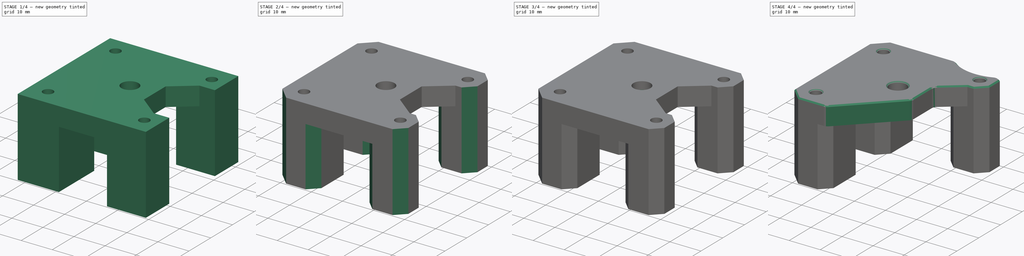
[diagram: build sequence overview — one tinted view per stage of 4, left to right]
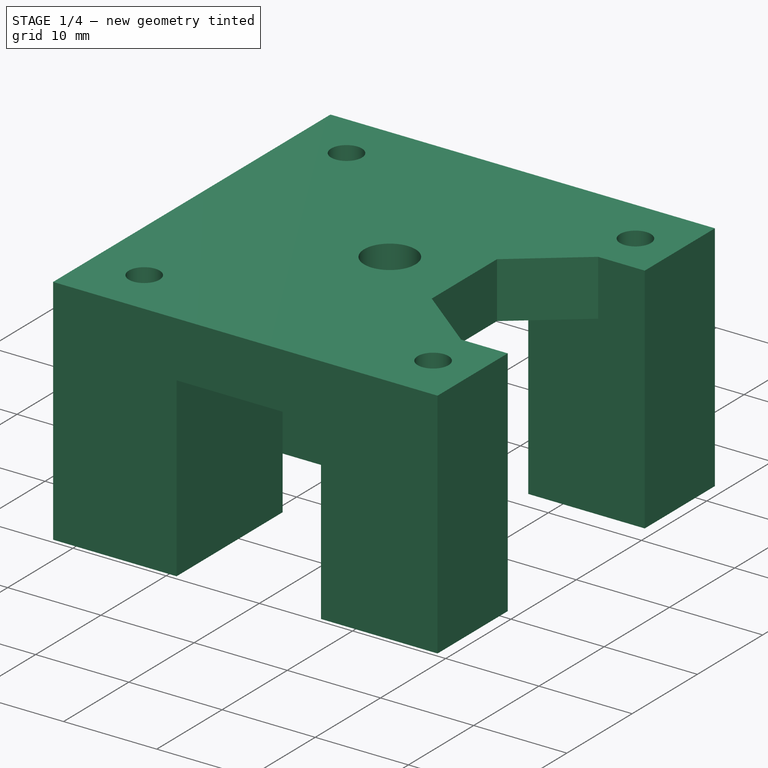
[diagram: stage 1 of 4 — iso view after this stage's code; geometry added in this stage tinted green]
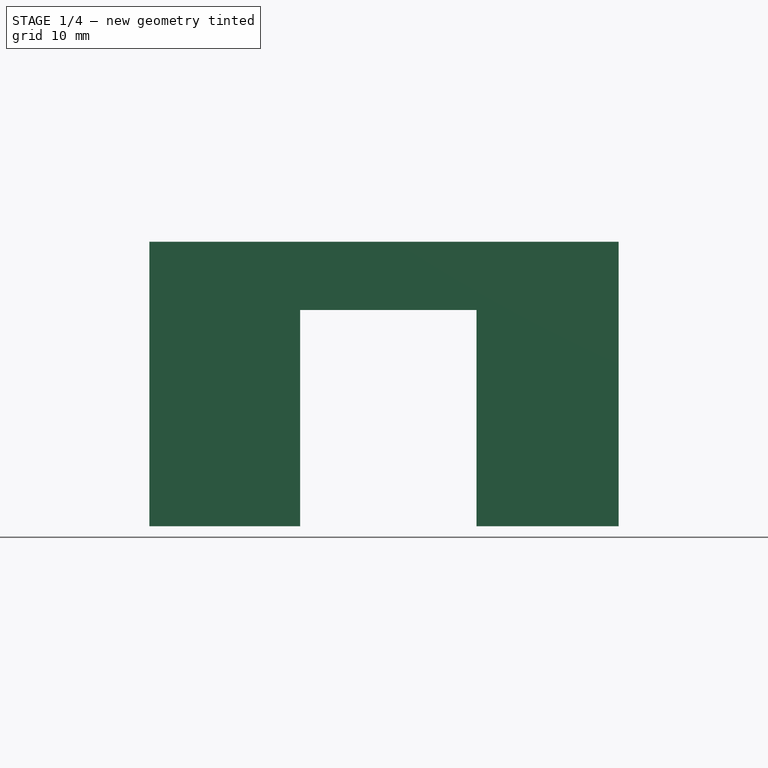
[diagram: stage 1 of 4 — front view after this stage's code; geometry added in this stage tinted green]
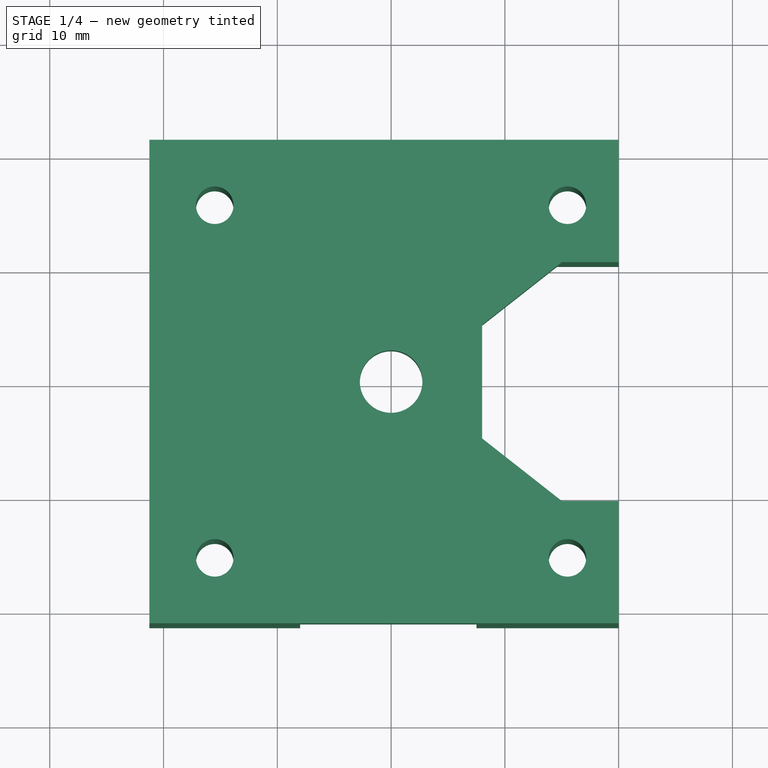
[diagram: stage 1 of 4 — top view after this stage's code; geometry added in this stage tinted green]
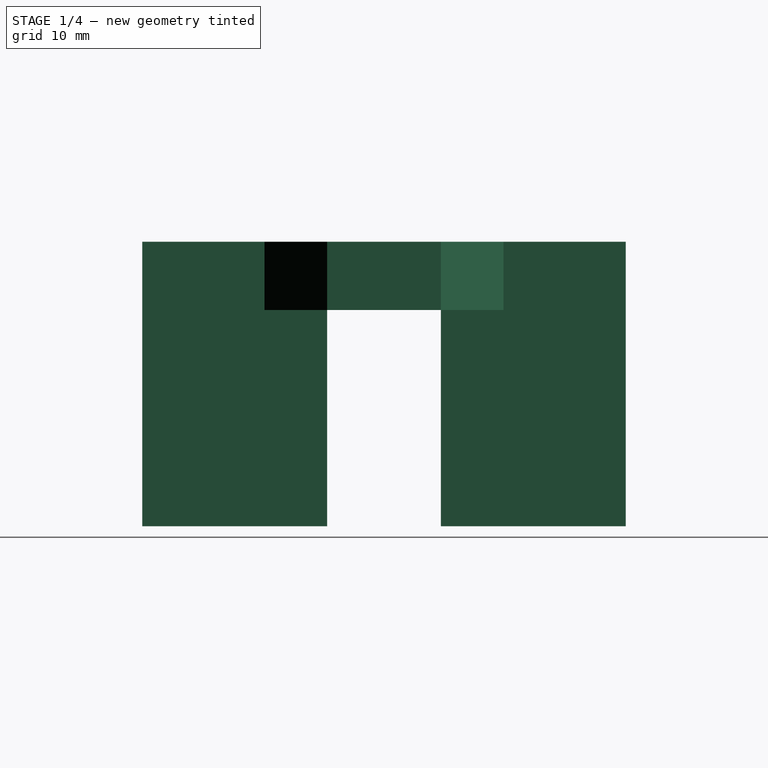
[diagram: stage 1 of 4 — right view after this stage's code; geometry added in this stage tinted green]
FCSTD DOCUMENT  (FreeCAD 0.19R24291 (Git))
Label: x-motor-support
License: All rights reserved
LicenseURL: http://en.wikipedia.org/wiki/All_rights_reserved
objects: Sketcher::SketchObject×8, PartDesign::Pocket×8, PartDesign::Chamfer×4, PartDesign::Pad×1, PartDesign::Fillet×1, PartDesign::Body×1
note: 37 computed .brp shape members not serialized (recipe doc carries the construction recipe); baked Part::Feature solids carry a one-line shape summary decoded from their .brp

FEATURE [Sketcher::SketchObject] Sketch
  FullyConstrained = true
  MapMode = 5
  Support = -> [XY_Plane]
  sketch-geometry (9):
    g0: LineSegment StartX=-21.25 StartY=21.25 StartZ=0 EndX=20 EndY=21.25 EndZ=0
    g1: LineSegment StartX=20 StartY=21.25 StartZ=0 EndX=20 EndY=-21.25 EndZ=0
    g2: LineSegment StartX=20 StartY=-21.25 StartZ=0 EndX=-21.25 EndY=-21.25 EndZ=0
    g3: LineSegment StartX=-21.25 StartY=-21.25 StartZ=0 EndX=-21.25 EndY=21.25 EndZ=0
    g4: Circle CenterX=-15.5 CenterY=15.5 CenterZ=0 NormalX=0 NormalY=0 NormalZ=1 AngleXU=0 Radius=1.65
    g5: Circle CenterX=-15.5 CenterY=-15.5 CenterZ=0 NormalX=0 NormalY=0 NormalZ=1 AngleXU=0 Radius=1.65
    g6: Circle CenterX=15.5 CenterY=-15.5 CenterZ=0 NormalX=0 NormalY=0 NormalZ=1 AngleXU=0 Radius=1.65
    g7: Circle CenterX=15.5 CenterY=15.5 CenterZ=0 NormalX=0 NormalY=0 NormalZ=1 AngleXU=0 Radius=1.65
    g8: Circle CenterX=0 CenterY=0 CenterZ=0 NormalX=0 NormalY=0 NormalZ=1 AngleXU=0 Radius=2.75
  constraints (26):
    c: Coincident(g0,g1)
    c: Coincident(g1,g2)
    c: Coincident(g2,g3)
    c: Coincident(g3,g0)
    c: Horizontal(g0)
    c: Horizontal(g2)
    c: Vertical(g1)
    c: Vertical(g3)
    c: DistanceY(g3,g3) = 42.5
    c: DistanceY(g-1,g0) = 21.25
    c: DistanceX(g0,g-1) = 21.25
    c: DistanceX(g-1,g0) = 20
    c: Horizontal(g7,g4)
    c: Horizontal(g5,g6)
    c: Vertical(g5,g4)
    c: Vertical(g6,g7)
    c: Equal(g5,g4)
    c: Equal(g4,g7)
    c: Equal(g7,g6)
    c: DistanceX(g4,g7) = 31
    c: DistanceY(g-1,g7) = 15.5
    c: DistanceY(g6,g7) = 31
    c: Radius(g4) = 1.65
    c: Coincident(g8,g-1)
    c: Radius(g8) = 2.75
    c: DistanceX(g4,g8) = 15.5
FEATURE [PartDesign::Pad] Pad
  Direction = (1,1,1)
  Length = 25
  Length2 = 100
  Profile = -> Sketch
  Type = 0
FEATURE [Sketcher::SketchObject] Sketch001
  ExternalGeometry = -> [Pad]
  FullyConstrained = true
  MapMode = 5
  Placement = pos=(0,0,0) rot=(1,0,0;3.14159rad)
  Support = -> [Pad]
  sketch-geometry (13):
    g0: LineSegment StartX=-21.25 StartY=5 StartZ=0 EndX=-21.25 EndY=-5 EndZ=0
    g1: LineSegment StartX=-21.25 StartY=-5 StartZ=0 EndX=-8 EndY=-5 EndZ=0
    g2: LineSegment StartX=-8 StartY=-5 StartZ=0 EndX=-8 EndY=-21.25 EndZ=0
    g3: LineSegment StartX=-8 StartY=-21.25 StartZ=0 EndX=7.5 EndY=-21.25 EndZ=0
    g4: LineSegment StartX=7.5 StartY=-21.25 StartZ=0 EndX=7.5 EndY=-10.5 EndZ=0
    g5: LineSegment StartX=7.5 StartY=-10.5 StartZ=0 EndX=20 EndY=-10.5 EndZ=0
    g6: LineSegment StartX=20 StartY=-10.5 StartZ=0 EndX=20 EndY=10.5 EndZ=0
    g7: LineSegment StartX=20 StartY=10.5 StartZ=0 EndX=7.5 EndY=10.5 EndZ=0
    g8: LineSegment StartX=7.5 StartY=10.5 StartZ=0 EndX=7.5 EndY=21.25 EndZ=0
    g9: LineSegment StartX=7.5 StartY=21.25 StartZ=0 EndX=-8 EndY=21.25 EndZ=0
    g10: LineSegment StartX=-8 StartY=21.25 StartZ=0 EndX=-8 EndY=5 EndZ=0
    g11: LineSegment StartX=-8 StartY=5 StartZ=0 EndX=-21.25 EndY=5 EndZ=0
    g12: Circle CenterX=0 CenterY=0 CenterZ=0 NormalX=0 NormalY=0 NormalZ=1 AngleXU=0 Radius=7.5
  constraints (38):
    c: PointOnObject(g0,g-7)
    c: PointOnObject(g0,g-7)
    c: Coincident(g0,g1)
    c: Horizontal(g1)
    c: Coincident(g1,g2)
    c: PointOnObject(g2,g-8)
    c: Vertical(g2)
    c: Coincident(g2,g3)
    c: PointOnObject(g3,g-8)
    c: Coincident(g3,g4)
    c: Coincident(g4,g5)
    c: PointOnObject(g5,g-10)
    c: Horizontal(g5)
    c: Coincident(g5,g6)
    c: PointOnObject(g6,g-10)
    c: Coincident(g6,g7)
    c: Horizontal(g7)
    c: Coincident(g7,g8)
    c: PointOnObject(g8,g-9)
    c: Coincident(g8,g9)
    c: PointOnObject(g9,g-9)
    c: Coincident(g9,g10)
    c: Vertical(g10)
    c: Coincident(g10,g11)
    c: Coincident(g11,g0)
    c: Horizontal(g11)
    c: Vertical(g8)
    c: Vertical(g4)
    c: Vertical(g1,g10)
    c: Vertical(g4,g7)
    c: DistanceY(g0,g-3) = 10.5
    c: DistanceY(g-6,g0) = 10.5
    c: DistanceX(g-6,g1) = 7.5
    c: DistanceX(g-1,g7) = 7.5
    c: DistanceY(g-5,g4) = 5
    c: DistanceY(g7,g-4) = 5
    c: Coincident(g12,g-1)
    c: Radius(g12) = 7.5
FEATURE [PartDesign::Pocket] Pocket
  BaseFeature = -> Pad
  Length = 19
  Length2 = 100
  Profile = -> Sketch001
  Type = 0
FEATURE [PartDesign::Pocket] Pocket001
  BaseFeature = -> Pocket
  Length = 19
  Length2 = 100
  Profile = -> Sketch001
  Type = 0
FEATURE [Sketcher::SketchObject] Sketch002
  ExternalGeometry = -> [Pocket001]
  FullyConstrained = true
  MapMode = 5
  Placement = pos=(0,0,19) rot=(1,0,0;3.14159rad)
  Support = -> [Pocket001]
  sketch-geometry (6):
    g0: LineSegment StartX=20 StartY=10.5 StartZ=0 EndX=20 EndY=-10.5 EndZ=0
    g1: LineSegment StartX=20 StartY=-10.5 StartZ=0 EndX=15 EndY=-10.5 EndZ=0
    g2: LineSegment StartX=15 StartY=-10.5 StartZ=0 EndX=8 EndY=-5 EndZ=0
    g3: LineSegment StartX=8 StartY=-5 StartZ=0 EndX=8 EndY=5 EndZ=0
    g4: LineSegment StartX=8 StartY=5 StartZ=0 EndX=15 EndY=10.5 EndZ=0
    g5: LineSegment StartX=15 StartY=10.5 StartZ=0 EndX=20 EndY=10.5 EndZ=0
  constraints (16):
    c: Coincident(g-4,g0)
    c: Coincident(g0,g-5)
    c: Coincident(g0,g1)
    c: PointOnObject(g1,g-5)
    c: Coincident(g1,g2)
    c: Coincident(g2,g3)
    c: Vertical(g3)
    c: Coincident(g3,g4)
    c: PointOnObject(g4,g-4)
    c: Coincident(g4,g5)
    c: Coincident(g5,g0)
    c: DistanceX(g5,g5) = 5
    c: Vertical(g1,g4)
    c: DistanceX(g3,g4) = 7
    c: DistanceY(g-1,g3) = 5
    c: DistanceY(g2,g-1) = 5
FEATURE [PartDesign::Pocket] Pocket002
  BaseFeature = -> Pocket001
  Length = 5
  Length2 = 100
  Profile = -> Sketch002
  Type = 1
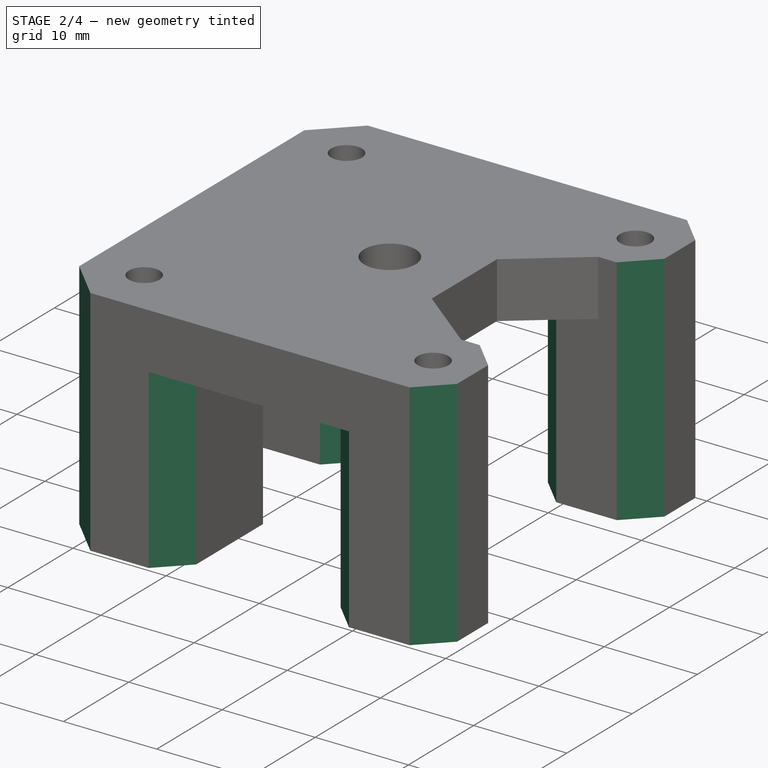
[diagram: stage 2 of 4 — iso view after this stage's code; geometry added in this stage tinted green]
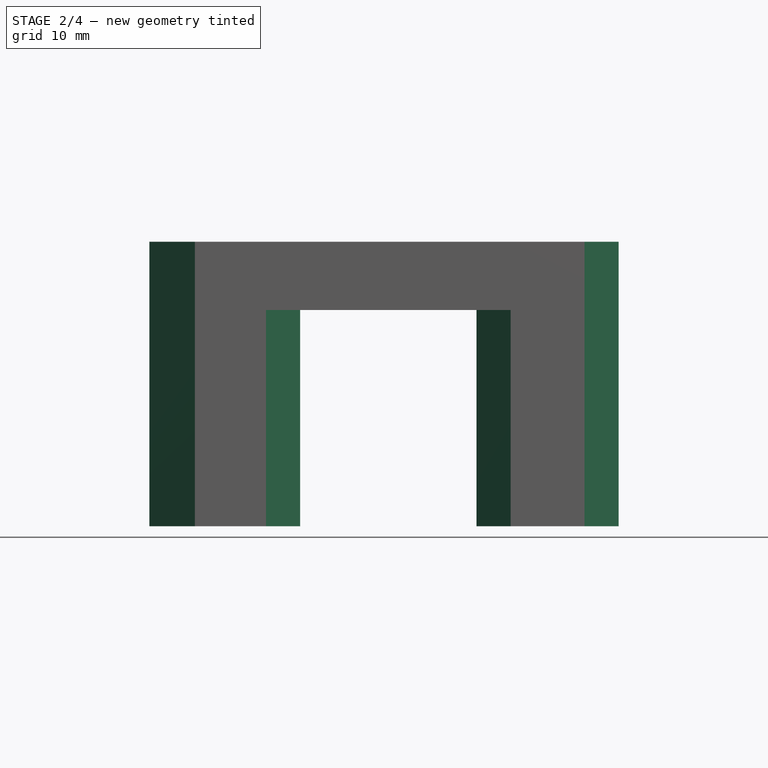
[diagram: stage 2 of 4 — front view after this stage's code; geometry added in this stage tinted green]
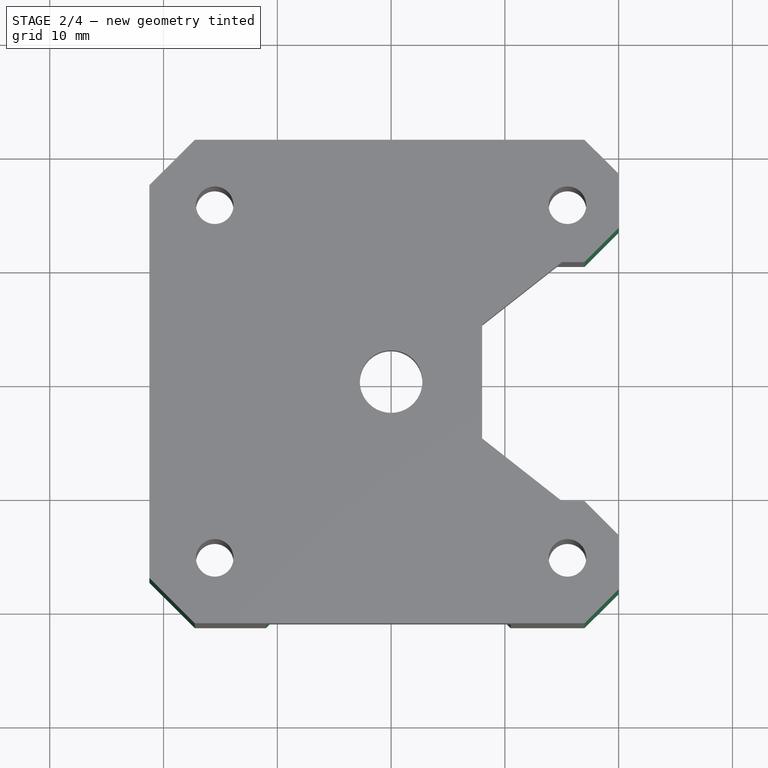
[diagram: stage 2 of 4 — top view after this stage's code; geometry added in this stage tinted green]
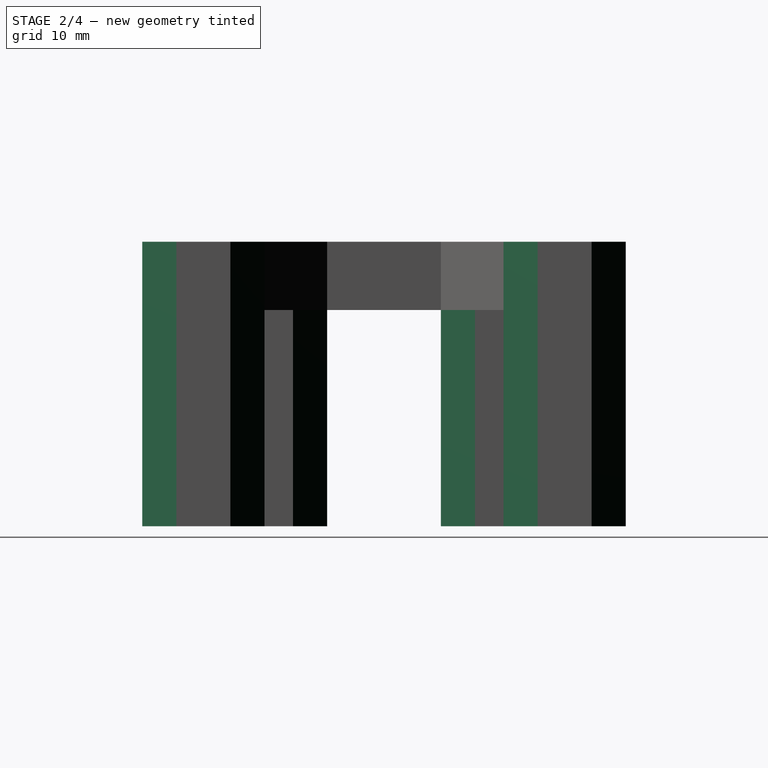
[diagram: stage 2 of 4 — right view after this stage's code; geometry added in this stage tinted green]
FEATURE [PartDesign::Chamfer] Chamfer
  Angle = 45
  Base = -> Pocket002 [Edge52,Edge8]
  BaseFeature = -> Pocket002
  ChamferType = 0
  FlipDirection = false
  Size = 4
  Size2 = 1
  SupportTransform = false
FEATURE [PartDesign::Chamfer] Chamfer001
  Angle = 45
  Base = -> Chamfer [Edge6,Edge48,Edge65,Edge62]
  BaseFeature = -> Chamfer
  ChamferType = 0
  FlipDirection = false
  Size = 3
  Size2 = 1
  SupportTransform = false
FEATURE [PartDesign::Chamfer] Chamfer002
  Angle = 45
  Base = -> Chamfer001 [Edge44,Edge94,Edge97,Edge62,Edge42,Edge6,Edge63,Edge7]
  BaseFeature = -> Chamfer001
  ChamferType = 0
  FlipDirection = false
  Size = 3
  Size2 = 1
  SupportTransform = false
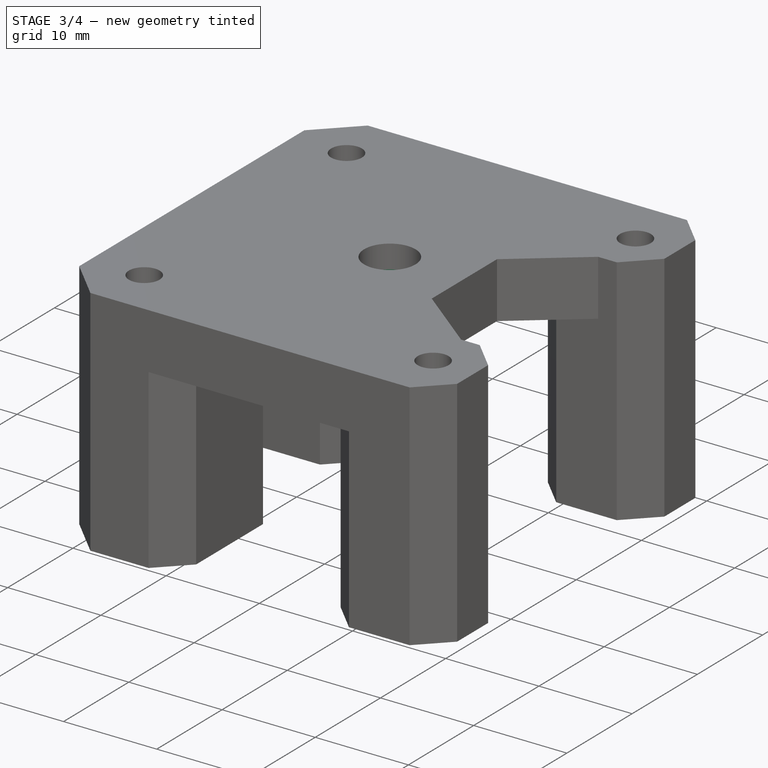
[diagram: stage 3 of 4 — iso view after this stage's code; geometry added in this stage tinted green]
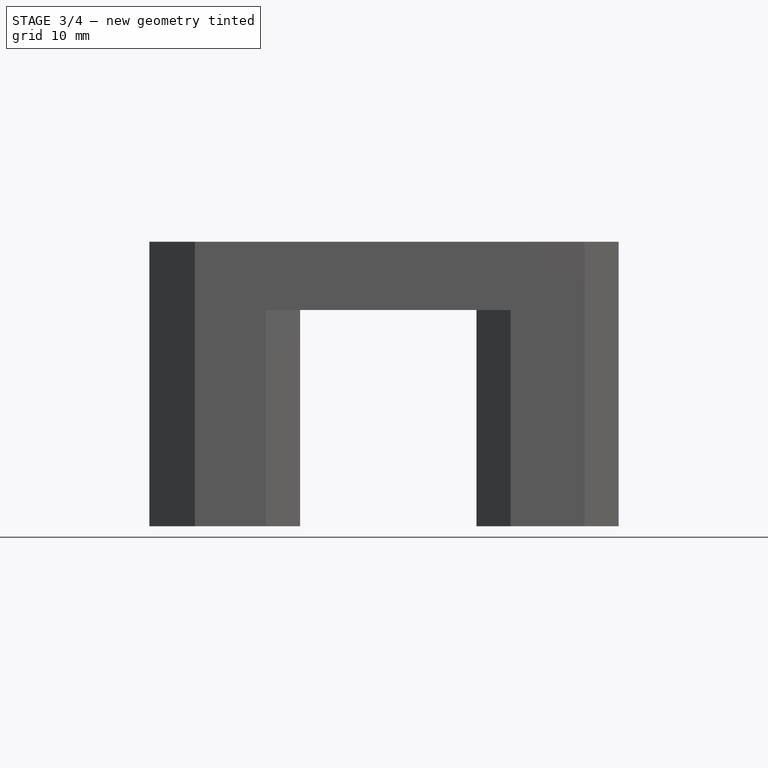
[diagram: stage 3 of 4 — front view after this stage's code; geometry added in this stage tinted green]
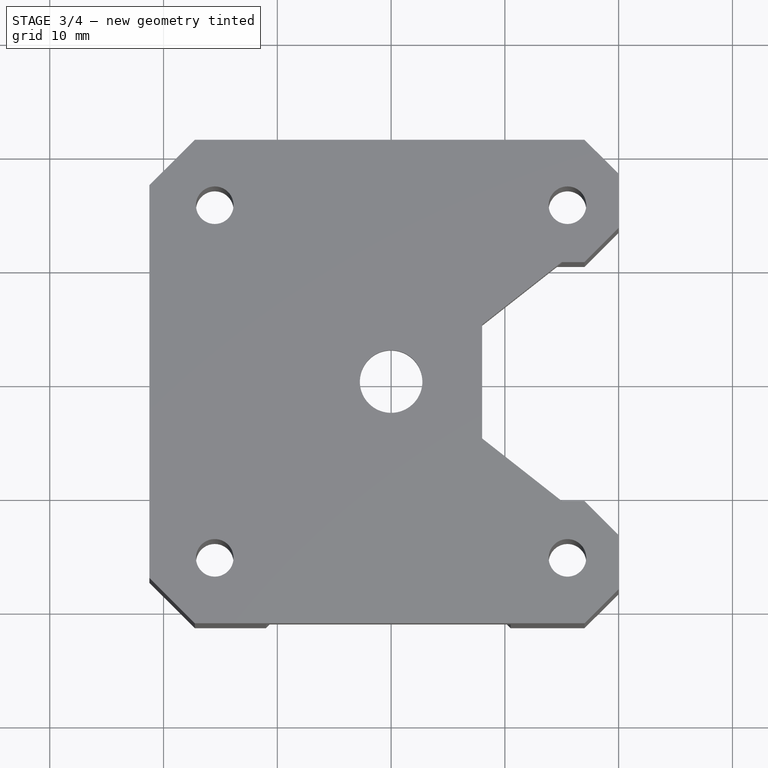
[diagram: stage 3 of 4 — top view after this stage's code; geometry added in this stage tinted green]
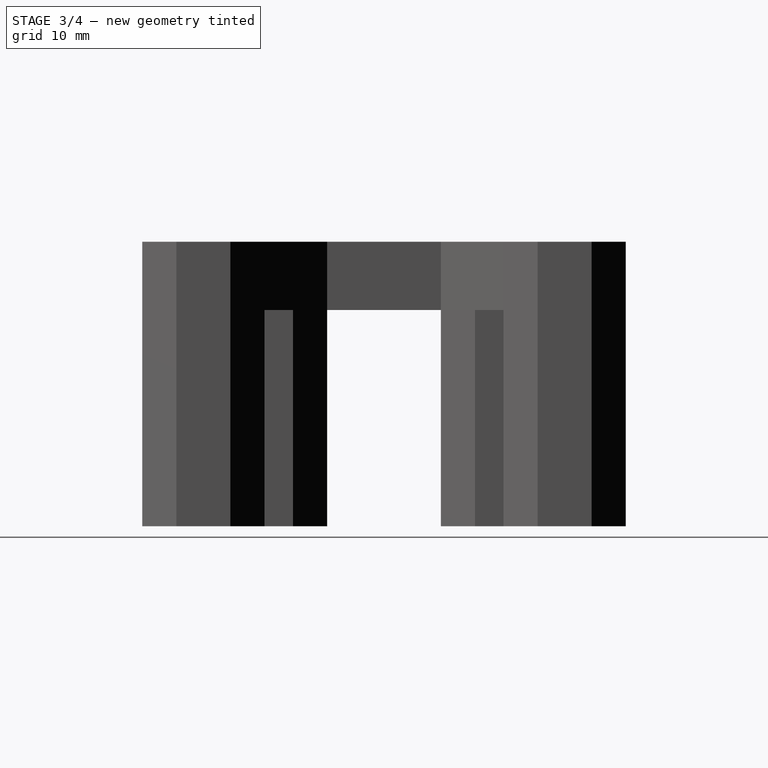
[diagram: stage 3 of 4 — right view after this stage's code; geometry added in this stage tinted green]
FEATURE [Sketcher::SketchObject] Sketch003
  FullyConstrained = true
  MapMode = 5
  Placement = pos=(0,0,19) rot=(1,0,0;3.14159rad)
  Support = -> [Chamfer002]
  sketch-geometry (1):
    g0: Circle CenterX=0 CenterY=0 CenterZ=0 NormalX=0 NormalY=0 NormalZ=1 AngleXU=0 Radius=5.55
  constraints (2):
    c: Coincident(g0,g-1)
    c: Radius(g0) = 5.55
FEATURE [PartDesign::Pocket] Pocket003
  BaseFeature = -> Chamfer002
  Length = 3.5
  Length2 = 100
  Profile = -> Sketch003
  Type = 0
FEATURE [Sketcher::SketchObject] Sketch004
  FullyConstrained = true
  MapMode = 5
  Placement = pos=(-21.25,0,0) rot=(0.57735,-0.57735,-0.57735;2.0944rad)
  Support = -> [Pocket003]
  sketch-geometry (4):
    g0: Circle CenterX=-10 CenterY=20 CenterZ=0 NormalX=0 NormalY=0 NormalZ=1 AngleXU=0 Radius=1.55
    g1: Circle CenterX=10 CenterY=20 CenterZ=0 NormalX=0 NormalY=0 NormalZ=1 AngleXU=0 Radius=1.55
    g2: Circle CenterX=-10 CenterY=5 CenterZ=0 NormalX=0 NormalY=0 NormalZ=1 AngleXU=0 Radius=1.55
    g3: Circle CenterX=10 CenterY=5 CenterZ=0 NormalX=0 NormalY=0 NormalZ=1 AngleXU=0 Radius=1.55
  constraints (12):
    c: Horizontal(g0,g1)
    c: Horizontal(g2,g3)
    c: Vertical(g2,g0)
    c: Vertical(g3,g1)
    c: Equal(g0,g2)
    c: Equal(g2,g3)
    c: Equal(g3,g1)
    c: Radius(g0) = 1.55
    c: DistanceX(g2,g-1) = 10
    c: DistanceX(g-1,g3) = 10
    c: DistanceY(g-1,g2) = 5
    c: DistanceY(g2,g0) = 15
FEATURE [PartDesign::Pocket] Pocket004
  BaseFeature = -> Pocket003
  Length = 10
  Length2 = 100
  Profile = -> Sketch004
  Type = 0
FEATURE [Sketcher::SketchObject] Sketch005
  ExternalGeometry = -> [Pocket004]
  FullyConstrained = true
  MapMode = 5
  Placement = pos=(-21.25,0,0) rot=(0.57735,-0.57735,-0.57735;2.0944rad)
  Support = -> [Pocket004]
  sketch-geometry (4):
    g0: Circle CenterX=-10 CenterY=20 CenterZ=0 NormalX=0 NormalY=0 NormalZ=1 AngleXU=0 Radius=1.9
    g1: Circle CenterX=-10 CenterY=5 CenterZ=0 NormalX=0 NormalY=0 NormalZ=1 AngleXU=0 Radius=1.9
    g2: Circle CenterX=10 CenterY=5 CenterZ=0 NormalX=0 NormalY=0 NormalZ=1 AngleXU=0 Radius=1.9
    g3: Circle CenterX=10 CenterY=20 CenterZ=0 NormalX=0 NormalY=0 NormalZ=1 AngleXU=0 Radius=1.9
  constraints (8):
    c: Coincident(g0,g-3)
    c: Coincident(g1,g-6)
    c: Coincident(g2,g-5)
    c: Coincident(g3,g-4)
    c: Equal(g0,g1)
    c: Equal(g1,g2)
    c: Equal(g2,g3)
    c: Radius(g0) = 1.9
FEATURE [PartDesign::Pocket] Pocket005
  BaseFeature = -> Pocket004
  Length = 6
  Length2 = 100
  Profile = -> Sketch005
  Type = 0
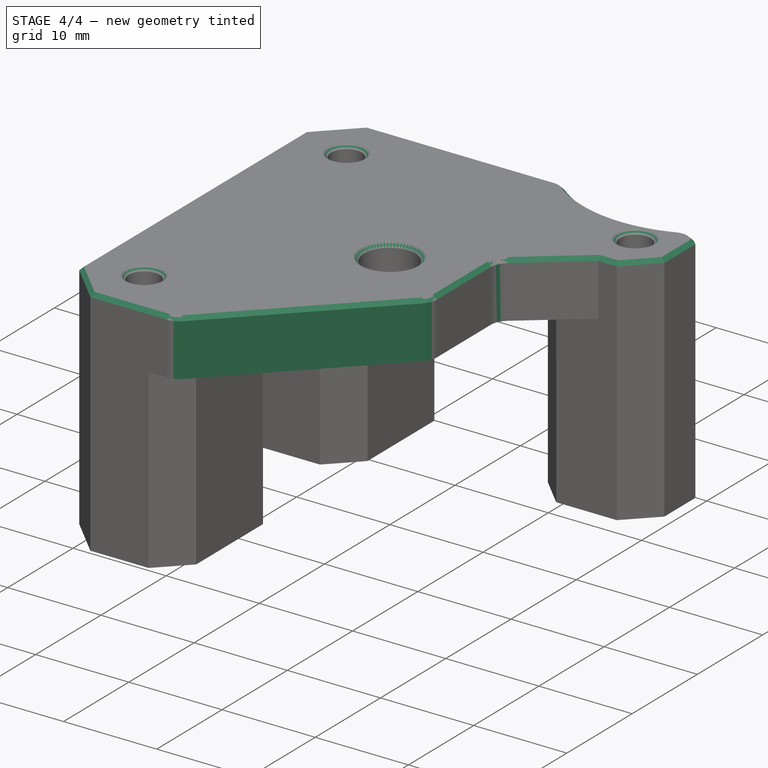
[diagram: stage 4 of 4 — iso view after this stage's code; geometry added in this stage tinted green]
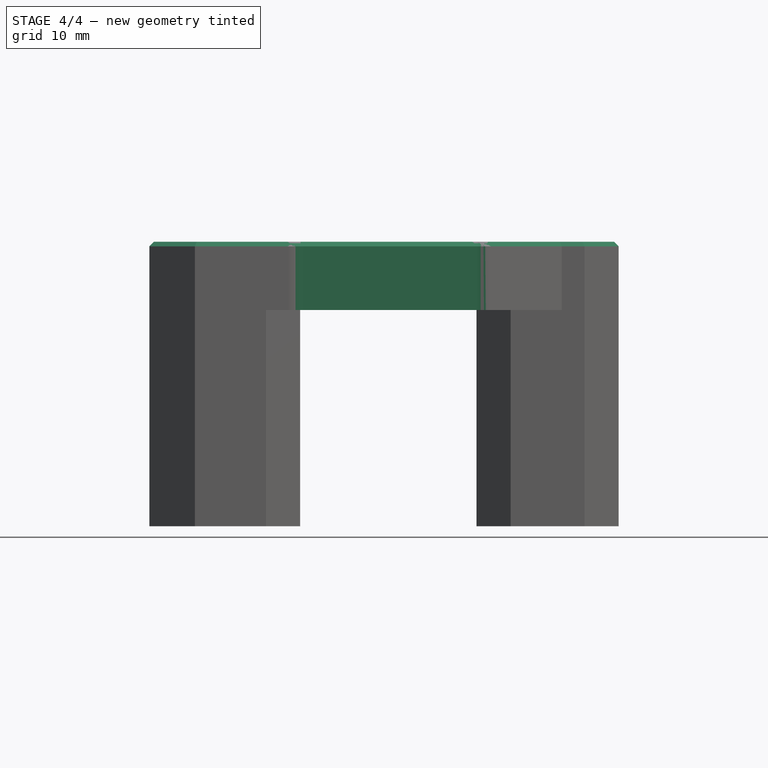
[diagram: stage 4 of 4 — front view after this stage's code; geometry added in this stage tinted green]
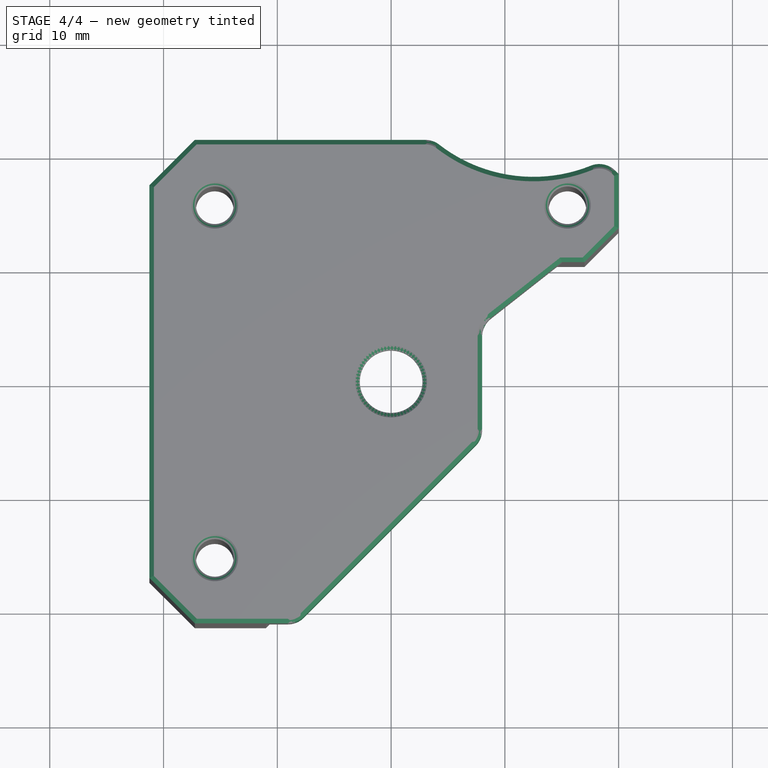
[diagram: stage 4 of 4 — top view after this stage's code; geometry added in this stage tinted green]
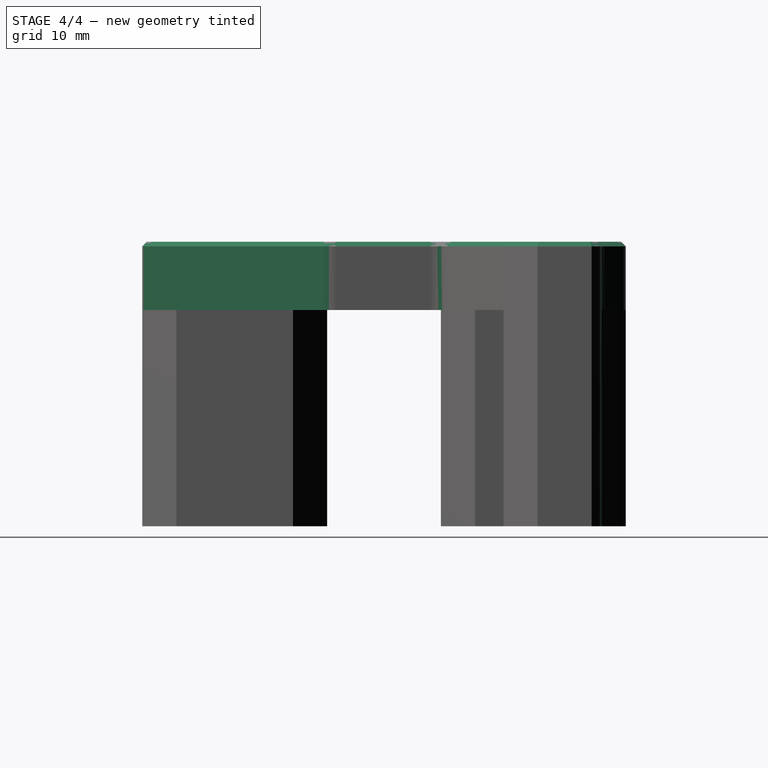
[diagram: stage 4 of 4 — right view after this stage's code; geometry added in this stage tinted green]
FEATURE [Sketcher::SketchObject] Sketch006
  ExternalGeometry = -> [Pocket005]
  FullyConstrained = true
  MapMode = 5
  Placement = pos=(0,0,25) rot=(0,0,1;0rad)
  Support = -> [Pocket005]
  sketch-geometry (2):
    g0: Circle CenterX=12.5 CenterY=31.5 CenterZ=0 NormalX=0 NormalY=0 NormalZ=1 AngleXU=0 Radius=13.5
    g1: Circle CenterX=12.5 CenterY=-31.5 CenterZ=0 NormalX=0 NormalY=0 NormalZ=1 AngleXU=0 Radius=13.5
  constraints (6):
    c: Vertical(g1,g0)
    c: DistanceX(g0,g-3) = 3
    c: DistanceY(g-3,g0) = 16
    c: DistanceY(g1,g-4) = 16
    c: Equal(g0,g1)
    c: Radius(g0) = 13.5
FEATURE [PartDesign::Pocket] Pocket006
  BaseFeature = -> Pocket005
  Length = 5
  Length2 = 100
  Profile = -> Sketch006
  Type = 1
FEATURE [Sketcher::SketchObject] Sketch007
  ExternalGeometry = -> [Pocket006]
  FullyConstrained = true
  MapMode = 5
  Placement = pos=(0,0,25) rot=(0,0,1;0rad)
  Support = -> [Pocket006]
  sketch-geometry (4):
    g0: LineSegment StartX=8 StartY=-5 StartZ=0 EndX=-8.25 EndY=-21.25 EndZ=0
    g1: LineSegment StartX=-8.25 StartY=-21.25 StartZ=0 EndX=20 EndY=-21.25 EndZ=0
    g2: LineSegment StartX=20 StartY=-21.25 StartZ=0 EndX=20 EndY=-5 EndZ=0
    g3: LineSegment StartX=20 StartY=-5 StartZ=0 EndX=8 EndY=-5 EndZ=0
  constraints (11):
    c: Coincident(g-3,g0)
    c: PointOnObject(g0,g-4)
    c: Coincident(g0,g1)
    c: Horizontal(g1)
    c: Coincident(g1,g2)
    c: Vertical(g2)
    c: Coincident(g2,g3)
    c: Coincident(g3,g0)
    c: Horizontal(g3)
    c: Angle(g1,g0) = 0.785398
    c: Vertical(g-5,g1)
FEATURE [PartDesign::Pocket] Pocket007
  BaseFeature = -> Pocket006
  Length = 5
  Length2 = 100
  Profile = -> Sketch007
  Type = 1
FEATURE [PartDesign::Fillet] Fillet
  Base = -> Pocket007 [Edge56,Edge55,Edge57,Edge52,Edge7]
  BaseFeature = -> Pocket007
  Radius = 2
  SupportTransform = false
FEATURE [PartDesign::Chamfer] Chamfer003
  Angle = 45
  Base = -> Fillet [Face2,Edge54,Edge77,Edge79,Edge80,Edge78]
  BaseFeature = -> Fillet
  ChamferType = 0
  FlipDirection = false
  Size = 0.4
  Size2 = 1
  SupportTransform = false
FEATURE [PartDesign::Body] Body
  Group = -> [Sketch,Pad,Sketch001,Pocket,Pocket001,Sketch002,Pocket002,Chamfer,Chamfer001,Chamfer002,Sketch003,Pocket003,Sketch004,Pocket004,Sketch005,Pocket005,Sketch006,Pocket006,Sketch007,Pocket007,Fillet,Chamfer003]
  Origin = -> Origin
  Tip = -> Chamfer003
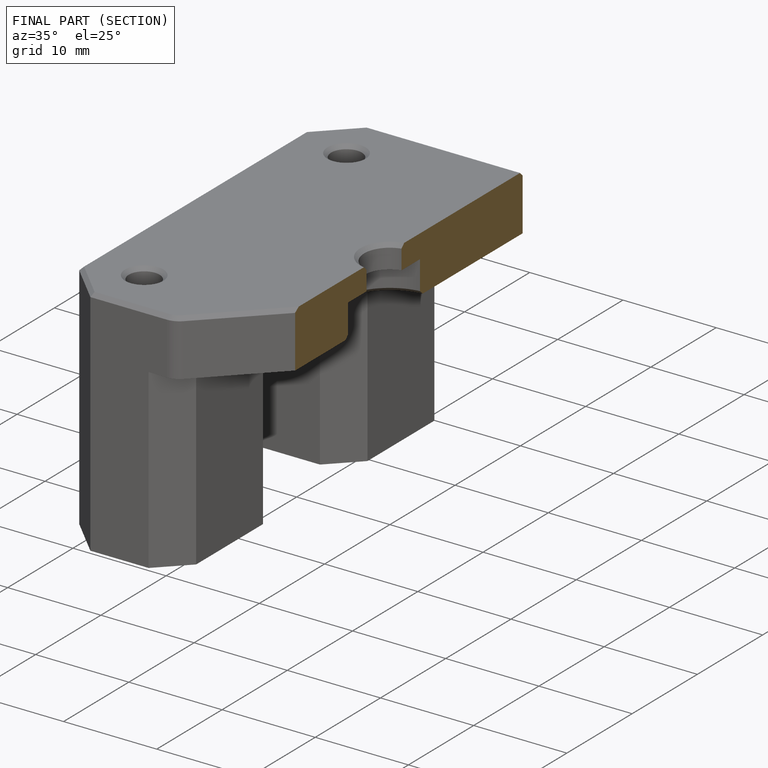
[diagram: finished part — half-section view (interior)]
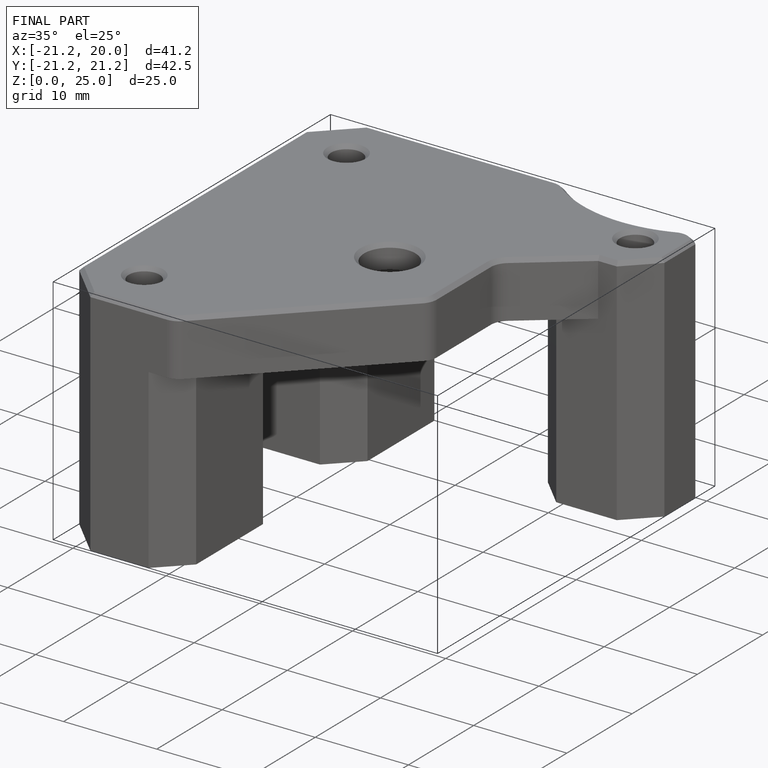
[diagram: finished part — iso view with bounding-box wireframe]
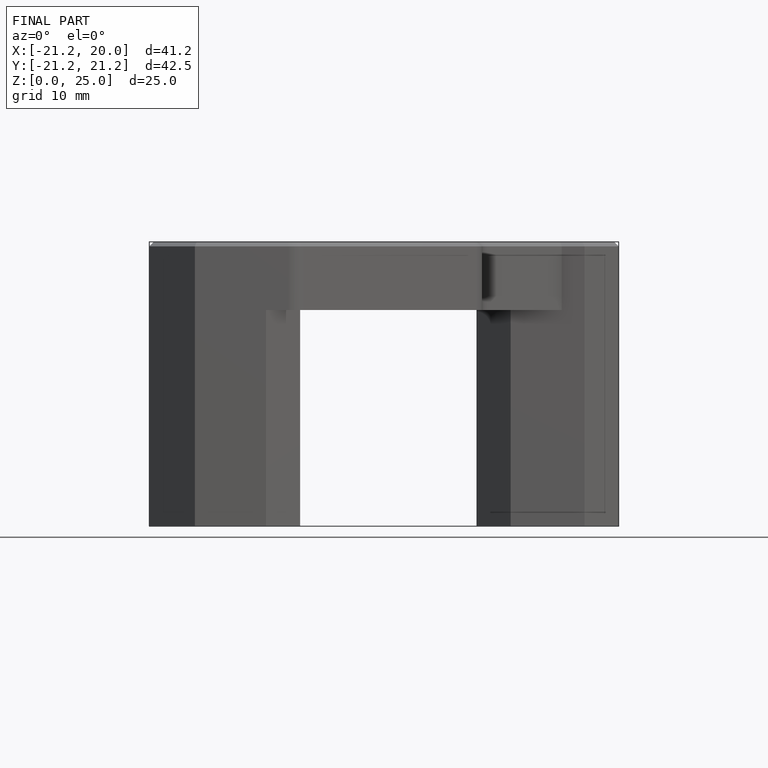
[diagram: finished part — front view with bounding-box wireframe]
